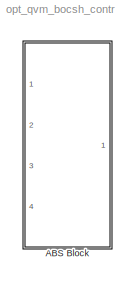
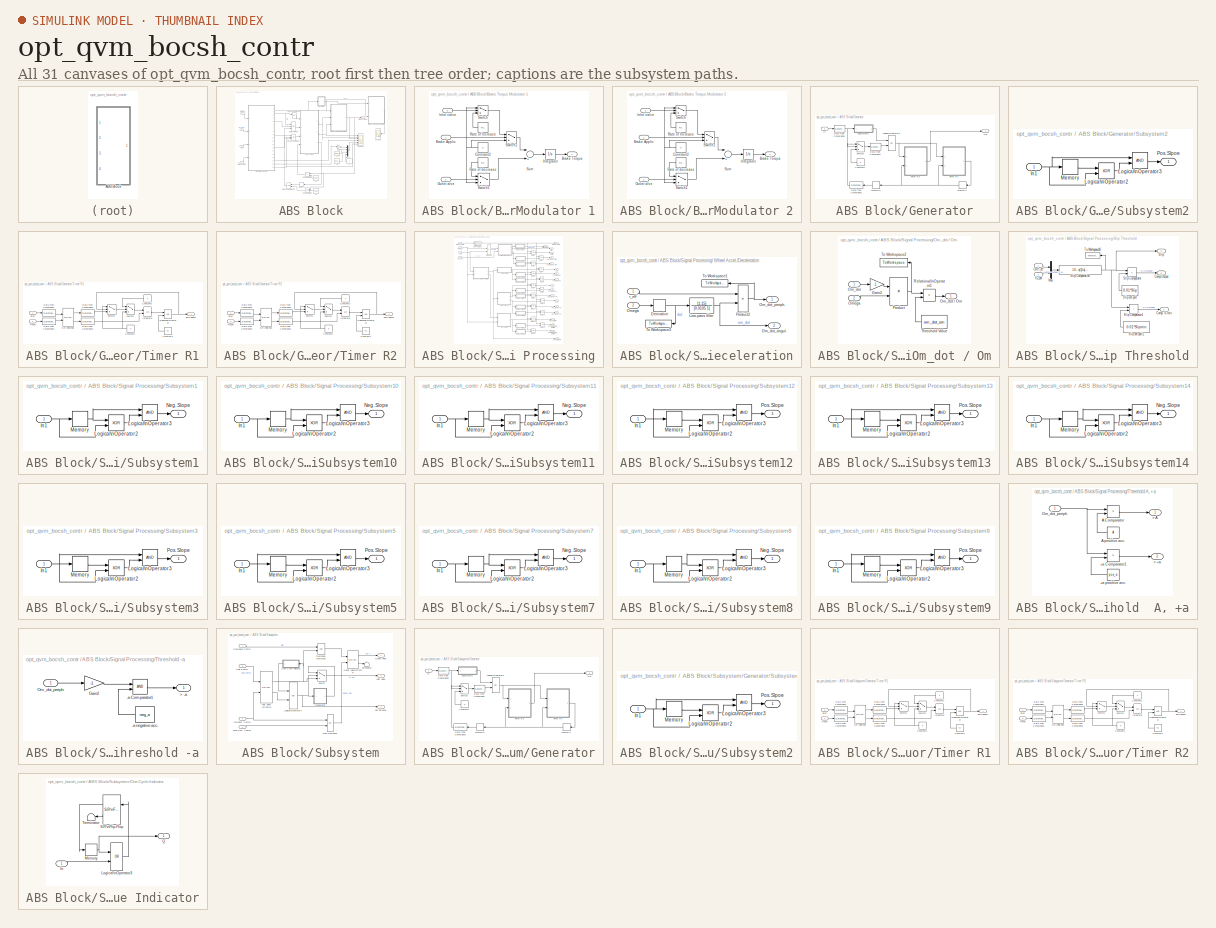
[diagram: thumbnail index - all 31 canvases of the model, root first then tree order]
MODEL opt_qvm_bocsh_contr
KIND model
CONFIG AbsTol = auto
CONFIG FixedStep = auto
CONFIG MaxStep = auto
CONFIG MinStep = auto
CONFIG RelTol = 1e-3
CONFIG Solver = ode45
CONFIG SolverMode = Auto
CONFIG StartTime = 0.0
CONFIG StopTime = 10.0
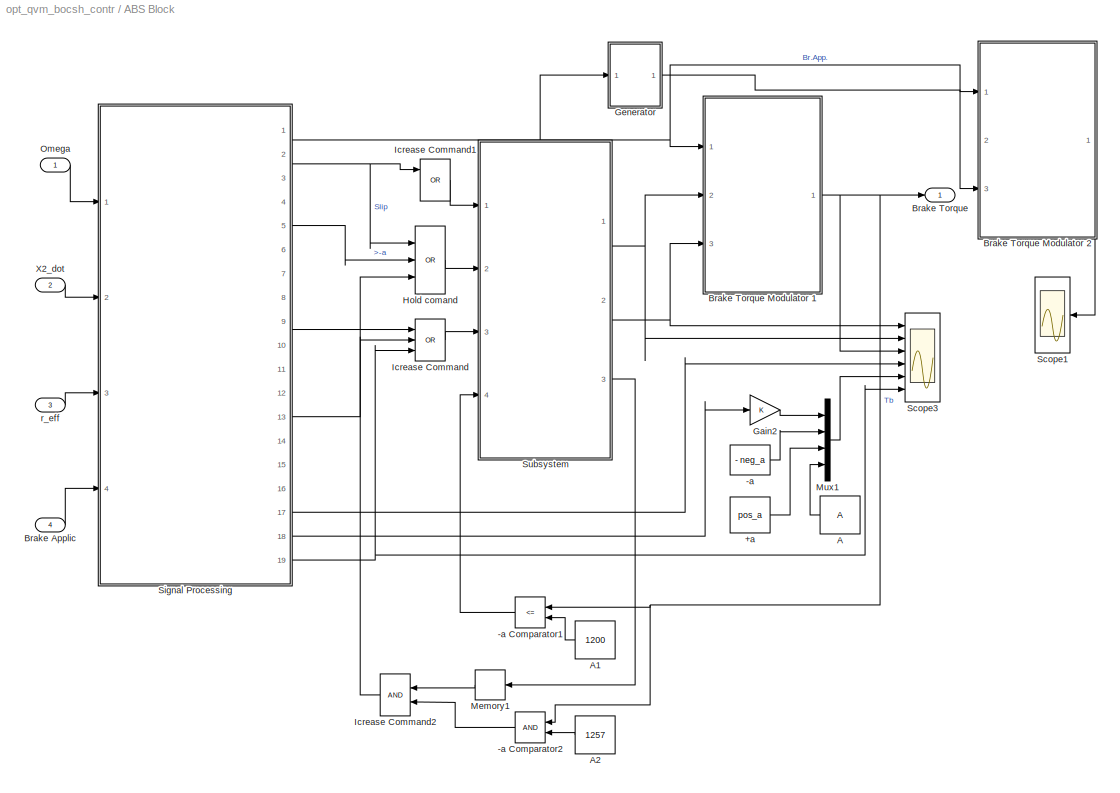
BLOCK [SubSystem] ABS Block
  MaskCallbackString = ||||||||||
  MaskEnableString = on,on,on,on,on,on,on,on,on,on,on
  MaskIconFrame = on
  MaskIconOpaque = on
  MaskIconRotate = none
  MaskIconUnits = autoscale
  MaskPromptString = R1 - Rate of incerase of the  Breake Torque. [Nm/s]|R2 - Rate of decerase of the  Breake Torque. [Nm/s]|Bmax - Max. Value of the Brake Torque. [Nm]|TO - Inlet Valve open time [s]|TC - Inlet Valve close time [s]|Desired slip [%]  |Slipmin - Minimum slip level|-a - Threshold value of the wheel peripheral deceleration [m/s^2]|+a - Threshold value of the wheel peripheral acceleration [m/s^2]|A - Thres...<+114ch>
  MaskStyleString = edit,edit,edit,edit,edit,edit,edit,edit,edit,edit,edit
  MaskToolTipString = on,on,on,on,on,on,on,on,on,on,on
  MaskTunableValueString = on,on,on,on,on,on,on,on,on,on,on
  MaskValueString = 19000|19000|1300|0.006|0.050|18|17|60|3|10|3
  MaskVarAliasString = ,,,,,,,,,,
  MaskVariables = R1=@1;R2=@2;Bmax=@3;TO=@4;TC=@5;Slip=@6;Slipmin=@7;neg_a=@8;pos_a=@9;A=@10;om_dot_om=@11;
  MaskVisibilityString = on,on,on,on,on,on,on,on,on,on,on
  Ports = [4, 1]
  TreatAsAtomicUnit = off
BLOCK [Constant] ABS Block/+a
  Value = pos_a
BLOCK [Constant] ABS Block/-a
  Value = - neg_a
BLOCK [RelationalOperator] ABS Block/-a Comparator1
  Operator = <=
BLOCK [RelationalOperator] ABS Block/-a Comparator2
BLOCK [Constant] ABS Block/A
  Value = A
BLOCK [Constant] ABS Block/A1
  Value = 1200
BLOCK [Constant] ABS Block/A2
  Value = 1257
BLOCK [Inport] ABS Block/Brake Applic
  Port = 4
BLOCK [Outport] ABS Block/Brake Torque
BLOCK [SubSystem] ABS Block/Brake Torque Modulator 1
  Description = The sysytem holds the Brake Torque at the reached value if no control signal applied
  MaskCallbackString = ||
  MaskEnableString = on,on,on
  MaskIconFrame = on
  MaskIconOpaque = on
  MaskIconRotate = none
  MaskIconUnits = autoscale
  MaskPromptString = Bmax - Max. Value of the Brake Torque. [Nm]|R1 - Rate of incerase of the  Brake Torque. [Nm/s]|R2 - Rate of decerase of the  Brake Torque. [Nm/s]
  MaskStyleString = edit,edit,edit
  MaskToolTipString = on,on,on
  MaskTunableValueString = on,on,on
  MaskValueString = Bmax|R1|R2
  MaskVarAliasString = ,,
  MaskVariables = Bmax=@1;R1=@2;R2=@3;
  MaskVisibilityString = on,on,on
  Ports = [3, 1]
  TreatAsAtomicUnit = off
BLOCK [Inport] ABS Block/Brake Torque Modulator 1/Brake Applic
BLOCK [Outport] ABS Block/Brake Torque Modulator 1/Brake Torque
BLOCK [Constant] ABS Block/Brake Torque Modulator 1/Constant2
  Value = 0
BLOCK [Inport] ABS Block/Brake Torque Modulator 1/Inlet valve
  Port = 3
BLOCK [Integrator] ABS Block/Brake Torque Modulator 1/Integrator
  LimitOutput = on
  LowerSaturationLimit = 0
  Ports = [1, 1]
  UpperSaturationLimit = Bmax
BLOCK [Inport] ABS Block/Brake Torque Modulator 1/Outlet alve
  Port = 2
BLOCK [Constant] ABS Block/Brake Torque Modulator 1/Rate of Increase
  Value = R1
BLOCK [Constant] ABS Block/Brake Torque Modulator 1/Rate of decrease
  Value = R2
BLOCK [Sum] ABS Block/Brake Torque Modulator 1/Sum
  Inputs = |+-
  Ports = [2, 1]
BLOCK [Switch] ABS Block/Brake Torque Modulator 1/Switch
  Threshold = 1
BLOCK [Switch] ABS Block/Brake Torque Modulator 1/Switch1
  Threshold = 1
BLOCK [Switch] ABS Block/Brake Torque Modulator 1/Switch2
  Threshold = 1
BLOCK [SubSystem] ABS Block/Brake Torque Modulator 2
  Description = The sysytem holds the Brake Torque at the reached value if no control signal applied
  MaskCallbackString = ||
  MaskEnableString = on,on,on
  MaskIconFrame = on
  MaskIconOpaque = on
  MaskIconRotate = none
  MaskIconUnits = autoscale
  MaskPromptString = Bmax - Max. Value of the Brake Torque. [Nm]|R1 - Rate of incerase of the  Brake Torque. [Nm/s]|R2 - Rate of decerase of the  Brake Torque. [Nm/s]
  MaskStyleString = edit,edit,edit
  MaskToolTipString = on,on,on
  MaskTunableValueString = on,on,on
  MaskValueString = Bmax|R1|R2
  MaskVarAliasString = ,,
  MaskVariables = Bmax=@1;R1=@2;R2=@3;
  MaskVisibilityString = on,on,on
  Ports = [3, 1]
  TreatAsAtomicUnit = off
BLOCK [Inport] ABS Block/Brake Torque Modulator 2/Brake Applic
BLOCK [Outport] ABS Block/Brake Torque Modulator 2/Brake Torque
BLOCK [Constant] ABS Block/Brake Torque Modulator 2/Constant2
  Value = 0
BLOCK [Inport] ABS Block/Brake Torque Modulator 2/Inlet valve
  Port = 3
BLOCK [Integrator] ABS Block/Brake Torque Modulator 2/Integrator
  LimitOutput = on
  LowerSaturationLimit = 0
  Ports = [1, 1]
  UpperSaturationLimit = Bmax
BLOCK [Inport] ABS Block/Brake Torque Modulator 2/Outlet alve
  Port = 2
BLOCK [Constant] ABS Block/Brake Torque Modulator 2/Rate of Increase
  Value = R1
BLOCK [Constant] ABS Block/Brake Torque Modulator 2/Rate of decrease
  Value = R2
BLOCK [Sum] ABS Block/Brake Torque Modulator 2/Sum
  Inputs = |+-
  Ports = [2, 1]
BLOCK [Switch] ABS Block/Brake Torque Modulator 2/Switch
  Threshold = 1
BLOCK [Switch] ABS Block/Brake Torque Modulator 2/Switch1
  Threshold = 1
BLOCK [Switch] ABS Block/Brake Torque Modulator 2/Switch2
  Threshold = 1
BLOCK [Gain] ABS Block/Gain2
BLOCK [SubSystem] ABS Block/Generator
  MaskCallbackString = |
  MaskEnableString = on,on
  MaskIconFrame = on
  MaskIconOpaque = on
  MaskIconRotate = none
  MaskIconUnits = autoscale
  MaskPromptString = Valve open [s]|Valve closed [s]
  MaskStyleString = edit,edit
  MaskToolTipString = on,on
  MaskTunableValueString = on,on
  MaskValueString = TO|TC
  MaskVarAliasString = ,
  MaskVariables = TO=@1;TC=@2;
  MaskVisibilityString = on,on
  Ports = [1, 1]
  TreatAsAtomicUnit = off
BLOCK [Constant] ABS Block/Generator/Constant1
  Value = 0
BLOCK [DataTypeConversion] ABS Block/Generator/Data Type Conversion1
  DataType = boolean
BLOCK [DataTypeConversion] ABS Block/Generator/Data Type Conversion2
  DataType = double
BLOCK [DataTypeConversion] ABS Block/Generator/Data Type Conversion5
  DataType = boolean
BLOCK [Inport] ABS Block/Generator/In
BLOCK [Logic] ABS Block/Generator/Logical\nOperator2
  Operator = OR
  Ports = [2, 1]
BLOCK [Memory] ABS Block/Generator/Memory1
BLOCK [Memory] ABS Block/Generator/Memory2
BLOCK [Outport] ABS Block/Generator/Out
BLOCK [SubSystem] ABS Block/Generator/Subsystem2
  Ports = [1, 1]
  TreatAsAtomicUnit = off
BLOCK [Inport] ABS Block/Generator/Subsystem2/In1
BLOCK [Logic] ABS Block/Generator/Subsystem2/Logical\nOperator2
  Operator = XOR
  Ports = [2, 1]
BLOCK [Logic] ABS Block/Generator/Subsystem2/Logical\nOperator3
  Ports = [2, 1]
BLOCK [Memory] ABS Block/Generator/Subsystem2/Memory
BLOCK [Outport] ABS Block/Generator/Subsystem2/Pos. Slpoe
BLOCK [Switch] ABS Block/Generator/Switch2
  Threshold = 1
BLOCK [SubSystem] ABS Block/Generator/Timer R1
  MaskEnableString = on
  MaskIconFrame = on
  MaskIconOpaque = on
  MaskIconRotate = none
  MaskIconUnits = autoscale
  MaskPromptString = Cycle Time [s]
  MaskStyleString = edit
  MaskToolTipString = on
  MaskTunableValueString = on
  MaskValueString = TC
  MaskVariables = TC=@1;
  MaskVisibilityString = on
  Ports = [2, 1]
  TreatAsAtomicUnit = off
BLOCK [Constant] ABS Block/Generator/Timer R1/Constant1
  Value = 0
BLOCK [Constant] ABS Block/Generator/Timer R1/Constant2
BLOCK [Constant] ABS Block/Generator/Timer R1/Constant3
  Value = TC
BLOCK [DataTypeConversion] ABS Block/Generator/Timer R1/Data Type Conversion1
  DataType = boolean
BLOCK [DataTypeConversion] ABS Block/Generator/Timer R1/Data Type Conversion2
  DataType = double
BLOCK [DataTypeConversion] ABS Block/Generator/Timer R1/Data Type Conversion3
  DataType = boolean
BLOCK [DataTypeConversion] ABS Block/Generator/Timer R1/Data Type Conversion5
  DataType = double
BLOCK [Integrator] ABS Block/Generator/Timer R1/Integrator
  ExternalReset = level
  Ports = [2, 1]
BLOCK [RelationalOperator] ABS Block/Generator/Timer R1/Relational\nOperator
BLOCK [Inport] ABS Block/Generator/Timer R1/Reset
  Port = 2
BLOCK [Reference] ABS Block/Generator/Timer R1/S-R\nFlip-Flop  REF=simulink_extras/Flip Flops/S-R\nFlip-Flop
  Ports = [2, 2]
  SourceBlock = simulink_extras/Flip Flops/S-R\nFlip-Flop
  SourceType = SRFlipFlop
  initial_condition = 0
BLOCK [Inport] ABS Block/Generator/Timer R1/Start
BLOCK [Switch] ABS Block/Generator/Timer R1/Switch1
  Threshold = 1
BLOCK [Switch] ABS Block/Generator/Timer R1/Switch2
  Threshold = 1
BLOCK [Outport] ABS Block/Generator/Timer R1/Time elapse
BLOCK [SubSystem] ABS Block/Generator/Timer R2
  MaskEnableString = on
  MaskIconFrame = on
  MaskIconOpaque = on
  MaskIconRotate = none
  MaskIconUnits = autoscale
  MaskPromptString = Open time [s]
  MaskStyleString = edit
  MaskToolTipString = on
  MaskTunableValueString = on
  MaskValueString = TO
  MaskVariables = TO=@1;
  MaskVisibilityString = on
  Ports = [2, 1]
  TreatAsAtomicUnit = off
BLOCK [Constant] ABS Block/Generator/Timer R2/Constant1
  Value = 0
BLOCK [Constant] ABS Block/Generator/Timer R2/Constant2
BLOCK [Constant] ABS Block/Generator/Timer R2/Constant3
  Value = TO
BLOCK [DataTypeConversion] ABS Block/Generator/Timer R2/Data Type Conversion1
  DataType = boolean
BLOCK [DataTypeConversion] ABS Block/Generator/Timer R2/Data Type Conversion2
  DataType = double
BLOCK [DataTypeConversion] ABS Block/Generator/Timer R2/Data Type Conversion3
  DataType = boolean
BLOCK [DataTypeConversion] ABS Block/Generator/Timer R2/Data Type Conversion5
  DataType = double
BLOCK [Integrator] ABS Block/Generator/Timer R2/Integrator
  ExternalReset = level
  Ports = [2, 1]
BLOCK [RelationalOperator] ABS Block/Generator/Timer R2/Relational\nOperator
BLOCK [Inport] ABS Block/Generator/Timer R2/Reset
  Port = 2
BLOCK [Reference] ABS Block/Generator/Timer R2/S-R\nFlip-Flop  REF=simulink_extras/Flip Flops/S-R\nFlip-Flop
  Ports = [2, 2]
  SourceBlock = simulink_extras/Flip Flops/S-R\nFlip-Flop
  SourceType = SRFlipFlop
  initial_condition = 0
BLOCK [Inport] ABS Block/Generator/Timer R2/Start
BLOCK [Switch] ABS Block/Generator/Timer R2/Switch1
  Threshold = 1
BLOCK [Switch] ABS Block/Generator/Timer R2/Switch2
  Threshold = 1
BLOCK [Outport] ABS Block/Generator/Timer R2/Time elapse
BLOCK [Logic] ABS Block/Hold comand
  Inputs = 3
  Operator = OR
  Ports = [3, 1]
BLOCK [Logic] ABS Block/Icrease Command
  Inputs = 3
  Operator = OR
  Ports = [3, 1]
BLOCK [Logic] ABS Block/Icrease Command1
  Inputs = 3
  Operator = OR
  Ports = [3, 1]
BLOCK [Logic] ABS Block/Icrease Command2
  Ports = [2, 1]
BLOCK [Memory] ABS Block/Memory1
BLOCK [Mux] ABS Block/Mux1
  DisplayOption = bar
  Ports = [4, 1]
BLOCK [Inport] ABS Block/Omega
BLOCK [Scope] ABS Block/Scope1
  DataFormat = StructureWithTime
  LimitDataPoints = off
  NumInputPorts = 1
  Ports = [1]
  SaveName = ScopeData5
  TimeRange = 3
  YMax = 1
  YMin = -1
  ZoomMode = yonly
BLOCK [Scope] ABS Block/Scope3
  DataFormat = StructureWithTime
  LimitDataPoints = off
  NumInputPorts = 6
  Ports = [6]
  TimeRange = 3
  YMax = 1~1~1500~0.225~30~5
  YMin = 0~0~0~-0.025~-90~-5
  ZoomMode = yonly
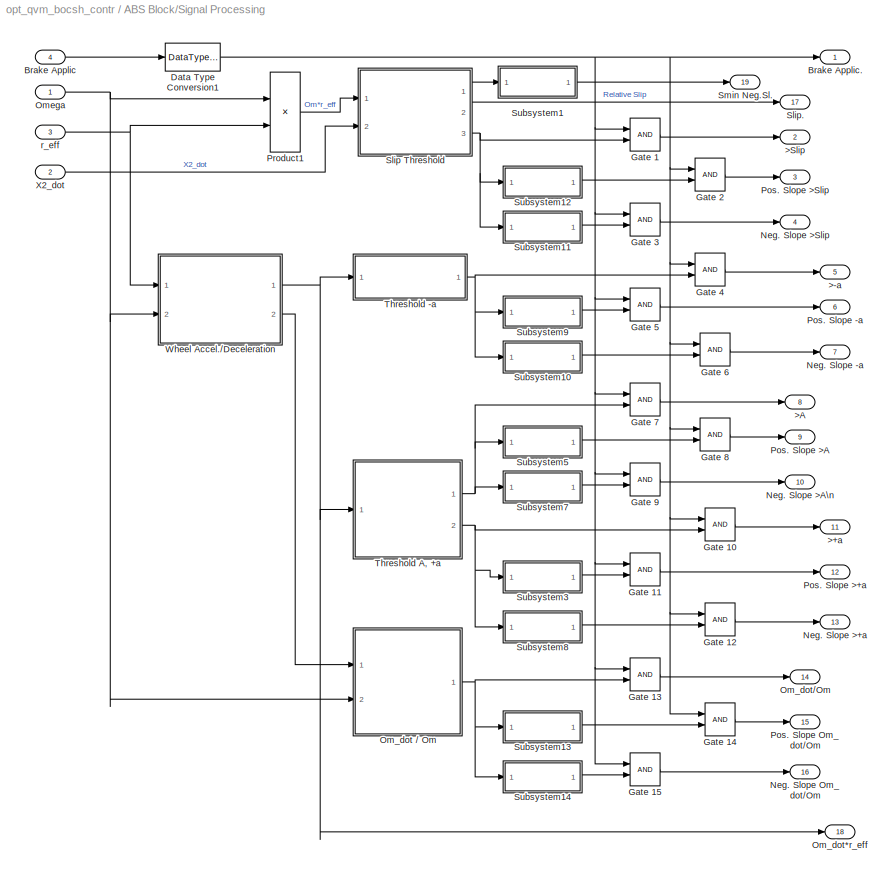
BLOCK [SubSystem] ABS Block/Signal Processing
  Ports = [4, 19]
  TreatAsAtomicUnit = off
BLOCK [Outport] ABS Block/Signal Processing/ Om_dot*r_eff
  Port = 18
BLOCK [SubSystem] ABS Block/Signal Processing/ Wheel Accel.//Deceleration
  Ports = [2, 2]
  TreatAsAtomicUnit = off
BLOCK [Derivative] ABS Block/Signal Processing/ Wheel Accel.//Deceleration/Derivative
BLOCK [TransferFcn] ABS Block/Signal Processing/ Wheel Accel.//Deceleration/Low-pass filter
  Denominator = [0.0105 1]
  Numerator = [1.15]
BLOCK [Outport] ABS Block/Signal Processing/ Wheel Accel.//Deceleration/Om_dot_angul.
  Port = 2
BLOCK [Outport] ABS Block/Signal Processing/ Wheel Accel.//Deceleration/Om_dot_periph.
BLOCK [Inport] ABS Block/Signal Processing/ Wheel Accel.//Deceleration/Omega
  Port = 2
BLOCK [Product] ABS Block/Signal Processing/ Wheel Accel.//Deceleration/Product2
  Inputs = **
  Ports = [2, 1]
BLOCK [ToWorkspace] ABS Block/Signal Processing/ Wheel Accel.//Deceleration/To Workspace1
  MaxDataPoints = 10000
  SaveFormat = Array
  VariableName = om_dot_per
BLOCK [ToWorkspace] ABS Block/Signal Processing/ Wheel Accel.//Deceleration/To Workspace3
  MaxDataPoints = 10000
  SaveFormat = Array
  VariableName = om_dotcont
BLOCK [Inport] ABS Block/Signal Processing/ Wheel Accel.//Deceleration/r_eff
BLOCK [Outport] ABS Block/Signal Processing/>+a
  Port = 11
BLOCK [Outport] ABS Block/Signal Processing/>-a
  Port = 5
BLOCK [Outport] ABS Block/Signal Processing/>A
  Port = 8
BLOCK [Outport] ABS Block/Signal Processing/>Slip
  Port = 2
BLOCK [Inport] ABS Block/Signal Processing/Brake Applic
  Port = 4
BLOCK [Outport] ABS Block/Signal Processing/Brake Applic.
BLOCK [DataTypeConversion] ABS Block/Signal Processing/Data Type Conversion1
  DataType = boolean
BLOCK [Logic] ABS Block/Signal Processing/Gate 1
  Ports = [2, 1]
BLOCK [Logic] ABS Block/Signal Processing/Gate 10
  Ports = [2, 1]
BLOCK [Logic] ABS Block/Signal Processing/Gate 11
  Ports = [2, 1]
BLOCK [Logic] ABS Block/Signal Processing/Gate 12
  Ports = [2, 1]
BLOCK [Logic] ABS Block/Signal Processing/Gate 13
  Ports = [2, 1]
BLOCK [Logic] ABS Block/Signal Processing/Gate 14
  Ports = [2, 1]
BLOCK [Logic] ABS Block/Signal Processing/Gate 15
  Ports = [2, 1]
BLOCK [Logic] ABS Block/Signal Processing/Gate 2
  Ports = [2, 1]
BLOCK [Logic] ABS Block/Signal Processing/Gate 3
  Ports = [2, 1]
BLOCK [Logic] ABS Block/Signal Processing/Gate 4
  Ports = [2, 1]
BLOCK [Logic] ABS Block/Signal Processing/Gate 5
  Ports = [2, 1]
BLOCK [Logic] ABS Block/Signal Processing/Gate 6
  Ports = [2, 1]
BLOCK [Logic] ABS Block/Signal Processing/Gate 7
  Ports = [2, 1]
BLOCK [Logic] ABS Block/Signal Processing/Gate 8
  Ports = [2, 1]
BLOCK [Logic] ABS Block/Signal Processing/Gate 9
  Ports = [2, 1]
BLOCK [Outport] ABS Block/Signal Processing/Neg. Slope -a
  Port = 7
BLOCK [Outport] ABS Block/Signal Processing/Neg. Slope >+a
  Port = 13
BLOCK [Outport] ABS Block/Signal Processing/Neg. Slope >A\n
  Port = 10
BLOCK [Outport] ABS Block/Signal Processing/Neg. Slope >Slip
  Port = 4
BLOCK [Outport] ABS Block/Signal Processing/Neg. Slope Om_dot//Om
  Port = 16
BLOCK [SubSystem] ABS Block/Signal Processing/Om_dot // Om
  Ports = [2, 1]
  TreatAsAtomicUnit = off
BLOCK [Gain] ABS Block/Signal Processing/Om_dot // Om/Gain2
  Gain = -1
BLOCK [Inport] ABS Block/Signal Processing/Om_dot // Om/Om_dot
BLOCK [Outport] ABS Block/Signal Processing/Om_dot // Om/Om_dot // Om
BLOCK [Inport] ABS Block/Signal Processing/Om_dot // Om/Omega
  Port = 2
BLOCK [Product] ABS Block/Signal Processing/Om_dot // Om/Product
  Inputs = */
  Ports = [2, 1]
BLOCK [RelationalOperator] ABS Block/Signal Processing/Om_dot // Om/Relational\nOperator1
  Operator = >
BLOCK [Constant] ABS Block/Signal Processing/Om_dot // Om/Threshold Value
  Value = om_dot_om
BLOCK [ToWorkspace] ABS Block/Signal Processing/Om_dot // Om/To Workspace2
  MaxDataPoints = 10000
  SaveFormat = Array
  VariableName = om_dotf_om
BLOCK [Outport] ABS Block/Signal Processing/Om_dot//Om
  Port = 14
BLOCK [Inport] ABS Block/Signal Processing/Omega
BLOCK [Outport] ABS Block/Signal Processing/Pos. Slope -a
  Port = 6
BLOCK [Outport] ABS Block/Signal Processing/Pos. Slope >+a
  Port = 12
BLOCK [Outport] ABS Block/Signal Processing/Pos. Slope >A
  Port = 9
BLOCK [Outport] ABS Block/Signal Processing/Pos. Slope >Slip
  Port = 3
BLOCK [Outport] ABS Block/Signal Processing/Pos. Slope Om_dot//Om
  Port = 15
BLOCK [Product] ABS Block/Signal Processing/Product1
  Inputs = **
  Ports = [2, 1]
BLOCK [SubSystem] ABS Block/Signal Processing/Slip Threshold
  Ports = [2, 3]
  TreatAsAtomicUnit = off
BLOCK [Fcn] ABS Block/Signal Processing/Slip Threshold/ Slip Computation
  Expr = 1.0 - u(1)/u(2)
BLOCK [Outport] ABS Block/Signal Processing/Slip Threshold/Comp. S-min
BLOCK [Outport] ABS Block/Signal Processing/Slip Threshold/Comp.Output
  Port = 3
BLOCK [Mux] ABS Block/Signal Processing/Slip Threshold/Mux
  DisplayOption = bar
  Inputs = 2
  Ports = [2, 1]
BLOCK [Inport] ABS Block/Signal Processing/Slip Threshold/Om*r_eff
BLOCK [Outport] ABS Block/Signal Processing/Slip Threshold/Slip
  Port = 2
BLOCK [RelationalOperator] ABS Block/Signal Processing/Slip Threshold/Slip Comparator
  Operator = >
BLOCK [RelationalOperator] ABS Block/Signal Processing/Slip Threshold/Slip Comparator1
  Operator = >
BLOCK [Constant] ABS Block/Signal Processing/Slip Threshold/Slip set-poit
  Value = 0.01*Slip
BLOCK [Constant] ABS Block/Signal Processing/Slip Threshold/Slip set-poit1
  Value = 0.01*Slipmin
BLOCK [ToWorkspace] ABS Block/Signal Processing/Slip Threshold/To Workspace18
  MaxDataPoints = 10000
  SaveFormat = Array
  VariableName = slip_est
BLOCK [Inport] ABS Block/Signal Processing/Slip Threshold/X2_dot
  Port = 2
BLOCK [Outport] ABS Block/Signal Processing/Slip.
  Port = 17
BLOCK [Outport] ABS Block/Signal Processing/Smin Neg.Sl.
  Port = 19
BLOCK [SubSystem] ABS Block/Signal Processing/Subsystem1
  Ports = [1, 1]
  TreatAsAtomicUnit = off
BLOCK [Inport] ABS Block/Signal Processing/Subsystem1/In1
BLOCK [Logic] ABS Block/Signal Processing/Subsystem1/Logical\nOperator2
  Operator = XOR
  Ports = [2, 1]
BLOCK [Logic] ABS Block/Signal Processing/Subsystem1/Logical\nOperator3
  Ports = [2, 1]
BLOCK [Memory] ABS Block/Signal Processing/Subsystem1/Memory
BLOCK [Outport] ABS Block/Signal Processing/Subsystem1/Neg. Slope
BLOCK [SubSystem] ABS Block/Signal Processing/Subsystem10
  Ports = [1, 1]
  TreatAsAtomicUnit = off
BLOCK [Inport] ABS Block/Signal Processing/Subsystem10/In1
BLOCK [Logic] ABS Block/Signal Processing/Subsystem10/Logical\nOperator2
  Operator = XOR
  Ports = [2, 1]
BLOCK [Logic] ABS Block/Signal Processing/Subsystem10/Logical\nOperator3
  Ports = [2, 1]
BLOCK [Memory] ABS Block/Signal Processing/Subsystem10/Memory
BLOCK [Outport] ABS Block/Signal Processing/Subsystem10/Neg. Slope
BLOCK [SubSystem] ABS Block/Signal Processing/Subsystem11
  Ports = [1, 1]
  TreatAsAtomicUnit = off
BLOCK [Inport] ABS Block/Signal Processing/Subsystem11/In1
BLOCK [Logic] ABS Block/Signal Processing/Subsystem11/Logical\nOperator2
  Operator = XOR
  Ports = [2, 1]
BLOCK [Logic] ABS Block/Signal Processing/Subsystem11/Logical\nOperator3
  Ports = [2, 1]
BLOCK [Memory] ABS Block/Signal Processing/Subsystem11/Memory
BLOCK [Outport] ABS Block/Signal Processing/Subsystem11/Neg. Slope
BLOCK [SubSystem] ABS Block/Signal Processing/Subsystem12
  Ports = [1, 1]
  TreatAsAtomicUnit = off
BLOCK [Inport] ABS Block/Signal Processing/Subsystem12/In1
BLOCK [Logic] ABS Block/Signal Processing/Subsystem12/Logical\nOperator2
  Operator = XOR
  Ports = [2, 1]
BLOCK [Logic] ABS Block/Signal Processing/Subsystem12/Logical\nOperator3
  Ports = [2, 1]
BLOCK [Memory] ABS Block/Signal Processing/Subsystem12/Memory
BLOCK [Outport] ABS Block/Signal Processing/Subsystem12/Pos. Slope
BLOCK [SubSystem] ABS Block/Signal Processing/Subsystem13
  Ports = [1, 1]
  TreatAsAtomicUnit = off
BLOCK [Inport] ABS Block/Signal Processing/Subsystem13/In1
BLOCK [Logic] ABS Block/Signal Processing/Subsystem13/Logical\nOperator2
  Operator = XOR
  Ports = [2, 1]
BLOCK [Logic] ABS Block/Signal Processing/Subsystem13/Logical\nOperator3
  Ports = [2, 1]
BLOCK [Memory] ABS Block/Signal Processing/Subsystem13/Memory
BLOCK [Outport] ABS Block/Signal Processing/Subsystem13/Pos. Slope
BLOCK [SubSystem] ABS Block/Signal Processing/Subsystem14
  Ports = [1, 1]
  TreatAsAtomicUnit = off
BLOCK [Inport] ABS Block/Signal Processing/Subsystem14/In1
BLOCK [Logic] ABS Block/Signal Processing/Subsystem14/Logical\nOperator2
  Operator = XOR
  Ports = [2, 1]
BLOCK [Logic] ABS Block/Signal Processing/Subsystem14/Logical\nOperator3
  Ports = [2, 1]
BLOCK [Memory] ABS Block/Signal Processing/Subsystem14/Memory
BLOCK [Outport] ABS Block/Signal Processing/Subsystem14/Neg. Slope
BLOCK [SubSystem] ABS Block/Signal Processing/Subsystem3
  Ports = [1, 1]
  TreatAsAtomicUnit = off
BLOCK [Inport] ABS Block/Signal Processing/Subsystem3/In1
BLOCK [Logic] ABS Block/Signal Processing/Subsystem3/Logical\nOperator2
  Operator = XOR
  Ports = [2, 1]
BLOCK [Logic] ABS Block/Signal Processing/Subsystem3/Logical\nOperator3
  Ports = [2, 1]
BLOCK [Memory] ABS Block/Signal Processing/Subsystem3/Memory
BLOCK [Outport] ABS Block/Signal Processing/Subsystem3/Pos. Slope
BLOCK [SubSystem] ABS Block/Signal Processing/Subsystem5
  Ports = [1, 1]
  TreatAsAtomicUnit = off
BLOCK [Inport] ABS Block/Signal Processing/Subsystem5/In1
BLOCK [Logic] ABS Block/Signal Processing/Subsystem5/Logical\nOperator2
  Operator = XOR
  Ports = [2, 1]
BLOCK [Logic] ABS Block/Signal Processing/Subsystem5/Logical\nOperator3
  Ports = [2, 1]
BLOCK [Memory] ABS Block/Signal Processing/Subsystem5/Memory
BLOCK [Outport] ABS Block/Signal Processing/Subsystem5/Pos. Slope
BLOCK [SubSystem] ABS Block/Signal Processing/Subsystem7
  Ports = [1, 1]
  TreatAsAtomicUnit = off
BLOCK [Inport] ABS Block/Signal Processing/Subsystem7/In1
BLOCK [Logic] ABS Block/Signal Processing/Subsystem7/Logical\nOperator2
  Operator = XOR
  Ports = [2, 1]
BLOCK [Logic] ABS Block/Signal Processing/Subsystem7/Logical\nOperator3
  Ports = [2, 1]
BLOCK [Memory] ABS Block/Signal Processing/Subsystem7/Memory
BLOCK [Outport] ABS Block/Signal Processing/Subsystem7/Neg. Slope
BLOCK [SubSystem] ABS Block/Signal Processing/Subsystem8
  Ports = [1, 1]
  TreatAsAtomicUnit = off
BLOCK [Inport] ABS Block/Signal Processing/Subsystem8/In1
BLOCK [Logic] ABS Block/Signal Processing/Subsystem8/Logical\nOperator2
  Operator = XOR
  Ports = [2, 1]
BLOCK [Logic] ABS Block/Signal Processing/Subsystem8/Logical\nOperator3
  Ports = [2, 1]
BLOCK [Memory] ABS Block/Signal Processing/Subsystem8/Memory
BLOCK [Outport] ABS Block/Signal Processing/Subsystem8/Neg. Slope
BLOCK [SubSystem] ABS Block/Signal Processing/Subsystem9
  Ports = [1, 1]
  TreatAsAtomicUnit = off
BLOCK [Inport] ABS Block/Signal Processing/Subsystem9/In1
BLOCK [Logic] ABS Block/Signal Processing/Subsystem9/Logical\nOperator2
  Operator = XOR
  Ports = [2, 1]
BLOCK [Logic] ABS Block/Signal Processing/Subsystem9/Logical\nOperator3
  Ports = [2, 1]
BLOCK [Memory] ABS Block/Signal Processing/Subsystem9/Memory
BLOCK [Outport] ABS Block/Signal Processing/Subsystem9/Pos. Slope
BLOCK [SubSystem] ABS Block/Signal Processing/Threshold  A, +a
  Ports = [1, 2]
  TreatAsAtomicUnit = off
BLOCK [Outport] ABS Block/Signal Processing/Threshold  A, +a/ > A
BLOCK [RelationalOperator] ABS Block/Signal Processing/Threshold  A, +a/+a Comparator1
  Operator = >
BLOCK [Constant] ABS Block/Signal Processing/Threshold  A, +a/+a positive acc.
  Value = pos_a
BLOCK [Outport] ABS Block/Signal Processing/Threshold  A, +a/> +a
  Port = 2
BLOCK [RelationalOperator] ABS Block/Signal Processing/Threshold  A, +a/A Comparator
  Operator = >
BLOCK [Constant] ABS Block/Signal Processing/Threshold  A, +a/A positive acc.
  Value = A
BLOCK [Inport] ABS Block/Signal Processing/Threshold  A, +a/Om_dot_periph.
BLOCK [SubSystem] ABS Block/Signal Processing/Threshold -a
  Ports = [1, 1]
  TreatAsAtomicUnit = off
BLOCK [RelationalOperator] ABS Block/Signal Processing/Threshold -a/-a Comparator1
BLOCK [Constant] ABS Block/Signal Processing/Threshold -a/-a negative acc.
  Value = neg_a
BLOCK [Outport] ABS Block/Signal Processing/Threshold -a/> -a
BLOCK [Gain] ABS Block/Signal Processing/Threshold -a/Gain2
  Gain = -1
BLOCK [Inport] ABS Block/Signal Processing/Threshold -a/Om_dot_periph.
BLOCK [Inport] ABS Block/Signal Processing/X2_dot
  Port = 2
BLOCK [Inport] ABS Block/Signal Processing/r_eff
  Port = 3
BLOCK [SubSystem] ABS Block/Subsystem
  Ports = [4, 3]
  TreatAsAtomicUnit = off
BLOCK [Inport] ABS Block/Subsystem/Decrease Comm.
BLOCK [Logic] ABS Block/Subsystem/Decrease command
  Ports = [2, 1]
BLOCK [SubSystem] ABS Block/Subsystem/Generator
  MaskCallbackString = |
  MaskEnableString = on,on
  MaskIconFrame = on
  MaskIconOpaque = on
  MaskIconRotate = none
  MaskIconUnits = autoscale
  MaskPromptString = Valve open [s]|Valve closed [s]
  MaskStyleString = edit,edit
  MaskToolTipString = on,on
  MaskTunableValueString = on,on
  MaskValueString = TO|TC
  MaskVarAliasString = ,
  MaskVariables = TO=@1;TC=@2;
  MaskVisibilityString = on,on
  Ports = [1, 1]
  TreatAsAtomicUnit = off
BLOCK [Constant] ABS Block/Subsystem/Generator/Constant1
  Value = 0
BLOCK [DataTypeConversion] ABS Block/Subsystem/Generator/Data Type Conversion1
  DataType = boolean
BLOCK [DataTypeConversion] ABS Block/Subsystem/Generator/Data Type Conversion2
  DataType = double
BLOCK [DataTypeConversion] ABS Block/Subsystem/Generator/Data Type Conversion5
  DataType = boolean
BLOCK [Inport] ABS Block/Subsystem/Generator/In
BLOCK [Logic] ABS Block/Subsystem/Generator/Logical\nOperator2
  Operator = OR
  Ports = [2, 1]
BLOCK [Memory] ABS Block/Subsystem/Generator/Memory1
BLOCK [Memory] ABS Block/Subsystem/Generator/Memory2
BLOCK [Outport] ABS Block/Subsystem/Generator/Out
BLOCK [SubSystem] ABS Block/Subsystem/Generator/Subsystem2
  Ports = [1, 1]
  TreatAsAtomicUnit = off
BLOCK [Inport] ABS Block/Subsystem/Generator/Subsystem2/In1
BLOCK [Logic] ABS Block/Subsystem/Generator/Subsystem2/Logical\nOperator2
  Operator = XOR
  Ports = [2, 1]
BLOCK [Logic] ABS Block/Subsystem/Generator/Subsystem2/Logical\nOperator3
  Ports = [2, 1]
BLOCK [Memory] ABS Block/Subsystem/Generator/Subsystem2/Memory
BLOCK [Outport] ABS Block/Subsystem/Generator/Subsystem2/Pos. Slpoe
BLOCK [Switch] ABS Block/Subsystem/Generator/Switch2
  Threshold = 1
BLOCK [SubSystem] ABS Block/Subsystem/Generator/Timer R1
  MaskEnableString = on
  MaskIconFrame = on
  MaskIconOpaque = on
  MaskIconRotate = none
  MaskIconUnits = autoscale
  MaskPromptString = Cycle Time [s]
  MaskStyleString = edit
  MaskToolTipString = on
  MaskTunableValueString = on
  MaskValueString = TC
  MaskVariables = TC=@1;
  MaskVisibilityString = on
  Ports = [2, 1]
  TreatAsAtomicUnit = off
BLOCK [Constant] ABS Block/Subsystem/Generator/Timer R1/Constant1
  Value = 0
BLOCK [Constant] ABS Block/Subsystem/Generator/Timer R1/Constant2
BLOCK [Constant] ABS Block/Subsystem/Generator/Timer R1/Constant3
  Value = TC
BLOCK [DataTypeConversion] ABS Block/Subsystem/Generator/Timer R1/Data Type Conversion1
  DataType = boolean
BLOCK [DataTypeConversion] ABS Block/Subsystem/Generator/Timer R1/Data Type Conversion2
  DataType = double
BLOCK [DataTypeConversion] ABS Block/Subsystem/Generator/Timer R1/Data Type Conversion3
  DataType = boolean
BLOCK [DataTypeConversion] ABS Block/Subsystem/Generator/Timer R1/Data Type Conversion5
  DataType = double
BLOCK [Integrator] ABS Block/Subsystem/Generator/Timer R1/Integrator
  ExternalReset = level
  Ports = [2, 1]
BLOCK [RelationalOperator] ABS Block/Subsystem/Generator/Timer R1/Relational\nOperator
BLOCK [Inport] ABS Block/Subsystem/Generator/Timer R1/Reset
  Port = 2
BLOCK [Reference] ABS Block/Subsystem/Generator/Timer R1/S-R\nFlip-Flop  REF=simulink_extras/Flip Flops/S-R\nFlip-Flop
  Ports = [2, 2]
  SourceBlock = simulink_extras/Flip Flops/S-R\nFlip-Flop
  SourceType = SRFlipFlop
  initial_condition = 0
BLOCK [Inport] ABS Block/Subsystem/Generator/Timer R1/Start
BLOCK [Switch] ABS Block/Subsystem/Generator/Timer R1/Switch1
  Threshold = 1
BLOCK [Switch] ABS Block/Subsystem/Generator/Timer R1/Switch2
  Threshold = 1
BLOCK [Outport] ABS Block/Subsystem/Generator/Timer R1/Time elapse
BLOCK [SubSystem] ABS Block/Subsystem/Generator/Timer R2
  MaskEnableString = on
  MaskIconFrame = on
  MaskIconOpaque = on
  MaskIconRotate = none
  MaskIconUnits = autoscale
  MaskPromptString = Open time [s]
  MaskStyleString = edit
  MaskToolTipString = on
  MaskTunableValueString = on
  MaskValueString = TO
  MaskVariables = TO=@1;
  MaskVisibilityString = on
  Ports = [2, 1]
  TreatAsAtomicUnit = off
BLOCK [Constant] ABS Block/Subsystem/Generator/Timer R2/Constant1
  Value = 0
BLOCK [Constant] ABS Block/Subsystem/Generator/Timer R2/Constant2
BLOCK [Constant] ABS Block/Subsystem/Generator/Timer R2/Constant3
  Value = TO
BLOCK [DataTypeConversion] ABS Block/Subsystem/Generator/Timer R2/Data Type Conversion1
  DataType = boolean
BLOCK [DataTypeConversion] ABS Block/Subsystem/Generator/Timer R2/Data Type Conversion2
  DataType = double
BLOCK [DataTypeConversion] ABS Block/Subsystem/Generator/Timer R2/Data Type Conversion3
  DataType = boolean
BLOCK [DataTypeConversion] ABS Block/Subsystem/Generator/Timer R2/Data Type Conversion5
  DataType = double
BLOCK [Integrator] ABS Block/Subsystem/Generator/Timer R2/Integrator
  ExternalReset = level
  Ports = [2, 1]
BLOCK [RelationalOperator] ABS Block/Subsystem/Generator/Timer R2/Relational\nOperator
BLOCK [Inport] ABS Block/Subsystem/Generator/Timer R2/Reset
  Port = 2
BLOCK [Reference] ABS Block/Subsystem/Generator/Timer R2/S-R\nFlip-Flop  REF=simulink_extras/Flip Flops/S-R\nFlip-Flop
  Ports = [2, 2]
  SourceBlock = simulink_extras/Flip Flops/S-R\nFlip-Flop
  SourceType = SRFlipFlop
  initial_condition = 0
BLOCK [Inport] ABS Block/Subsystem/Generator/Timer R2/Start
BLOCK [Switch] ABS Block/Subsystem/Generator/Timer R2/Switch1
  Threshold = 1
BLOCK [Switch] ABS Block/Subsystem/Generator/Timer R2/Switch2
  Threshold = 1
BLOCK [Outport] ABS Block/Subsystem/Generator/Timer R2/Time elapse
BLOCK [Inport] ABS Block/Subsystem/Hold Comm.
  Port = 2
BLOCK [Inport] ABS Block/Subsystem/Increase. Comm.
  Port = 3
BLOCK [Outport] ABS Block/Subsystem/Inlet Valve
  Port = 2
BLOCK [Reference] ABS Block/Subsystem/Inlet Valve \nControl  REF=simulink_extras/Flip Flops/S-R\nFlip-Flop
  Ports = [2, 2]
  SourceBlock = simulink_extras/Flip Flops/S-R\nFlip-Flop
  SourceType = SRFlipFlop
  initial_condition = 0
BLOCK [Logic] ABS Block/Subsystem/Logical\nOperator4
  Ports = [2, 1]
BLOCK [SubSystem] ABS Block/Subsystem/One Cycle Indicator
  Ports = [1, 1]
  TreatAsAtomicUnit = off
BLOCK [Inport] ABS Block/Subsystem/One Cycle Indicator/In
BLOCK [Logic] ABS Block/Subsystem/One Cycle Indicator/Logical\nOperator3
  Operator = OR
  Ports = [2, 1]
BLOCK [Memory] ABS Block/Subsystem/One Cycle Indicator/Memory
BLOCK [Outport] ABS Block/Subsystem/One Cycle Indicator/Q
BLOCK [Reference] ABS Block/Subsystem/One Cycle Indicator/S-R\nFlip-Flop  REF=simulink_extras/Flip Flops/S-R\nFlip-Flop
  Ports = [2, 2]
  SourceBlock = simulink_extras/Flip Flops/S-R\nFlip-Flop
  SourceType = SRFlipFlop
  initial_condition = 0
BLOCK [Terminator] ABS Block/Subsystem/One Cycle Indicator/Terminator
BLOCK [Outport] ABS Block/Subsystem/Outlet Valve
BLOCK [Reference] ABS Block/Subsystem/Outlet Valve\nControl  REF=simulink_extras/Flip Flops/S-R\nFlip-Flop
  Ports = [2, 2]
  SourceBlock = simulink_extras/Flip Flops/S-R\nFlip-Flop
  SourceType = SRFlipFlop
  initial_condition = 0
BLOCK [Outport] ABS Block/Subsystem/Sec increase
  Port = 3
BLOCK [Inport] ABS Block/Subsystem/Stop Dec. Comm.
  Port = 4
BLOCK [Logic] ABS Block/Subsystem/Stop Decrease
  Operator = OR
  Ports = [2, 1]
BLOCK [Switch] ABS Block/Subsystem/Switch
BLOCK [Terminator] ABS Block/Subsystem/Terminator
BLOCK [Inport] ABS Block/X2_dot
  Port = 2
BLOCK [Inport] ABS Block/r_eff
  Port = 3
LINE ABS Block/+a:1 -> ABS Block/Mux1:3
LINE ABS Block/-a Comparator1:1 -> ABS Block/Subsystem:4
LINE ABS Block/-a Comparator2:1 -> ABS Block/Icrease Command2:2
LINE ABS Block/-a:1 -> ABS Block/Mux1:2
LINE ABS Block/A1:1 -> ABS Block/-a Comparator1:2
LINE ABS Block/A2:1 -> ABS Block/-a Comparator2:2
LINE ABS Block/A:1 -> ABS Block/Mux1:4
LINE ABS Block/Brake Applic:1 -> ABS Block/Signal Processing:4
LINE ABS Block/Brake Torque Modulator 1/Brake Applic:1 -> ABS Block/Brake Torque Modulator 1/Switch2:2
NET ABS Block/Brake Torque Modulator 1/Constant2:1 -> ABS Block/Brake Torque Modulator 1/Switch1:3, ABS Block/Brake Torque Modulator 1/Switch2:3, ABS Block/Brake Torque Modulator 1/Switch:1
LINE ABS Block/Brake Torque Modulator 1/Inlet valve:1 -> ABS Block/Brake Torque Modulator 1/Switch:2
LINE ABS Block/Brake Torque Modulator 1/Integrator:1 -> ABS Block/Brake Torque Modulator 1/Brake Torque:1
LINE ABS Block/Brake Torque Modulator 1/Outlet alve:1 -> ABS Block/Brake Torque Modulator 1/Switch1:2
LINE ABS Block/Brake Torque Modulator 1/Rate of Increase:1 -> ABS Block/Brake Torque Modulator 1/Switch:3
LINE ABS Block/Brake Torque Modulator 1/Rate of decrease:1 -> ABS Block/Brake Torque Modulator 1/Switch1:1
LINE ABS Block/Brake Torque Modulator 1/Sum:1 -> ABS Block/Brake Torque Modulator 1/Integrator:1
LINE ABS Block/Brake Torque Modulator 1/Switch1:1 -> ABS Block/Brake Torque Modulator 1/Sum:2
LINE ABS Block/Brake Torque Modulator 1/Switch2:1 -> ABS Block/Brake Torque Modulator 1/Sum:1
LINE ABS Block/Brake Torque Modulator 1/Switch:1 -> ABS Block/Brake Torque Modulator 1/Switch2:1
NET ABS Block/Brake Torque Modulator 1:1 -> ABS Block/-a Comparator1:1, ABS Block/-a Comparator2:1, ABS Block/Brake Torque:1, ABS Block/Scope3:3
LINE ABS Block/Brake Torque Modulator 2/Brake Applic:1 -> ABS Block/Brake Torque Modulator 2/Switch2:2
NET ABS Block/Brake Torque Modulator 2/Constant2:1 -> ABS Block/Brake Torque Modulator 2/Switch1:3, ABS Block/Brake Torque Modulator 2/Switch2:3, ABS Block/Brake Torque Modulator 2/Switch:1
LINE ABS Block/Brake Torque Modulator 2/Inlet valve:1 -> ABS Block/Brake Torque Modulator 2/Switch:2
LINE ABS Block/Brake Torque Modulator 2/Integrator:1 -> ABS Block/Brake Torque Modulator 2/Brake Torque:1
LINE ABS Block/Brake Torque Modulator 2/Outlet alve:1 -> ABS Block/Brake Torque Modulator 2/Switch1:2
LINE ABS Block/Brake Torque Modulator 2/Rate of Increase:1 -> ABS Block/Brake Torque Modulator 2/Switch:3
LINE ABS Block/Brake Torque Modulator 2/Rate of decrease:1 -> ABS Block/Brake Torque Modulator 2/Switch1:1
LINE ABS Block/Brake Torque Modulator 2/Sum:1 -> ABS Block/Brake Torque Modulator 2/Integrator:1
LINE ABS Block/Brake Torque Modulator 2/Switch1:1 -> ABS Block/Brake Torque Modulator 2/Sum:2
LINE ABS Block/Brake Torque Modulator 2/Switch2:1 -> ABS Block/Brake Torque Modulator 2/Sum:1
LINE ABS Block/Brake Torque Modulator 2/Switch:1 -> ABS Block/Brake Torque Modulator 2/Switch2:1
LINE ABS Block/Brake Torque Modulator 2:1 -> ABS Block/Scope1:1
LINE ABS Block/Gain2:1 -> ABS Block/Mux1:1
LINE ABS Block/Generator/Constant1:1 -> ABS Block/Generator/Switch2:3
LINE ABS Block/Generator/Data Type Conversion1:1 -> ABS Block/Generator/Logical\nOperator2:2
LINE ABS Block/Generator/Data Type Conversion2:1 -> ABS Block/Generator/Switch2:1
NET ABS Block/Generator/Data Type Conversion5:1 -> ABS Block/Generator/Subsystem2:1, ABS Block/Generator/Switch2:2
LINE ABS Block/Generator/In:1 -> ABS Block/Generator/Data Type Conversion5:1
NET ABS Block/Generator/Logical\nOperator2:1 -> ABS Block/Generator/Timer R1:1, ABS Block/Generator/Timer R2:1
NET ABS Block/Generator/Memory1:1 -> ABS Block/Generator/Memory2:1, ABS Block/Generator/Timer R1:2, ABS Block/Generator/Timer R2:2
LINE ABS Block/Generator/Memory2:1 -> ABS Block/Generator/Data Type Conversion2:1
NET ABS Block/Generator/Subsystem2/In1:1 -> ABS Block/Generator/Subsystem2/Logical\nOperator2:2, ABS Block/Generator/Subsystem2/Logical\nOperator3:1, ABS Block/Generator/Subsystem2/Memory:1
LINE ABS Block/Generator/Subsystem2/Logical\nOperator2:1 -> ABS Block/Generator/Subsystem2/Logical\nOperator3:2
LINE ABS Block/Generator/Subsystem2/Logical\nOperator3:1 -> ABS Block/Generator/Subsystem2/Pos. Slpoe:1
LINE ABS Block/Generator/Subsystem2/Memory:1 -> ABS Block/Generator/Subsystem2/Logical\nOperator2:1
LINE ABS Block/Generator/Subsystem2:1 -> ABS Block/Generator/Logical\nOperator2:1
LINE ABS Block/Generator/Switch2:1 -> ABS Block/Generator/Data Type Conversion1:1
NET ABS Block/Generator/Timer R1/Constant1:1 -> ABS Block/Generator/Timer R1/Switch1:1, ABS Block/Generator/Timer R1/Switch2:3
LINE ABS Block/Generator/Timer R1/Constant2:1 -> ABS Block/Generator/Timer R1/Switch2:1
LINE ABS Block/Generator/Timer R1/Constant3:1 -> ABS Block/Generator/Timer R1/Relational\nOperator:2
LINE ABS Block/Generator/Timer R1/Data Type Conversion1:1 -> ABS Block/Generator/Timer R1/S-R\nFlip-Flop:1
LINE ABS Block/Generator/Timer R1/Data Type Conversion2:1 -> ABS Block/Generator/Timer R1/Integrator:2
LINE ABS Block/Generator/Timer R1/Data Type Conversion3:1 -> ABS Block/Generator/Timer R1/S-R\nFlip-Flop:2
LINE ABS Block/Generator/Timer R1/Data Type Conversion5:1 -> ABS Block/Generator/Timer R1/Switch1:3
LINE ABS Block/Generator/Timer R1/Integrator:1 -> ABS Block/Generator/Timer R1/Relational\nOperator:1
NET ABS Block/Generator/Timer R1/Relational\nOperator:1 -> ABS Block/Generator/Timer R1/Switch1:2, ABS Block/Generator/Timer R1/Time elapse:1
LINE ABS Block/Generator/Timer R1/Reset:1 -> ABS Block/Generator/Timer R1/Data Type Conversion3:1
LINE ABS Block/Generator/Timer R1/S-R\nFlip-Flop:1 -> ABS Block/Generator/Timer R1/Data Type Conversion5:1
LINE ABS Block/Generator/Timer R1/S-R\nFlip-Flop:2 -> ABS Block/Generator/Timer R1/Data Type Conversion2:1
LINE ABS Block/Generator/Timer R1/Start:1 -> ABS Block/Generator/Timer R1/Data Type Conversion1:1
LINE ABS Block/Generator/Timer R1/Switch1:1 -> ABS Block/Generator/Timer R1/Switch2:2
LINE ABS Block/Generator/Timer R1/Switch2:1 -> ABS Block/Generator/Timer R1/Integrator:1
LINE ABS Block/Generator/Timer R1:1 -> ABS Block/Generator/Memory1:1
NET ABS Block/Generator/Timer R2/Constant1:1 -> ABS Block/Generator/Timer R2/Switch1:1, ABS Block/Generator/Timer R2/Switch2:3
LINE ABS Block/Generator/Timer R2/Constant2:1 -> ABS Block/Generator/Timer R2/Switch2:1
LINE ABS Block/Generator/Timer R2/Constant3:1 -> ABS Block/Generator/Timer R2/Relational\nOperator:2
LINE ABS Block/Generator/Timer R2/Data Type Conversion1:1 -> ABS Block/Generator/Timer R2/S-R\nFlip-Flop:1
LINE ABS Block/Generator/Timer R2/Data Type Conversion2:1 -> ABS Block/Generator/Timer R2/Integrator:2
LINE ABS Block/Generator/Timer R2/Data Type Conversion3:1 -> ABS Block/Generator/Timer R2/S-R\nFlip-Flop:2
LINE ABS Block/Generator/Timer R2/Data Type Conversion5:1 -> ABS Block/Generator/Timer R2/Switch1:3
LINE ABS Block/Generator/Timer R2/Integrator:1 -> ABS Block/Generator/Timer R2/Relational\nOperator:1
NET ABS Block/Generator/Timer R2/Relational\nOperator:1 -> ABS Block/Generator/Timer R2/Switch1:2, ABS Block/Generator/Timer R2/Time elapse:1
LINE ABS Block/Generator/Timer R2/Reset:1 -> ABS Block/Generator/Timer R2/Data Type Conversion3:1
LINE ABS Block/Generator/Timer R2/S-R\nFlip-Flop:1 -> ABS Block/Generator/Timer R2/Data Type Conversion5:1
LINE ABS Block/Generator/Timer R2/S-R\nFlip-Flop:2 -> ABS Block/Generator/Timer R2/Data Type Conversion2:1
LINE ABS Block/Generator/Timer R2/Start:1 -> ABS Block/Generator/Timer R2/Data Type Conversion1:1
LINE ABS Block/Generator/Timer R2/Switch1:1 -> ABS Block/Generator/Timer R2/Switch2:2
LINE ABS Block/Generator/Timer R2/Switch2:1 -> ABS Block/Generator/Timer R2/Integrator:1
LINE ABS Block/Generator/Timer R2:1 -> ABS Block/Generator/Out:1
LINE ABS Block/Generator:1 -> ABS Block/Brake Torque Modulator 2:3
LINE ABS Block/Hold comand:1 -> ABS Block/Subsystem:2
LINE ABS Block/Icrease Command1:1 -> ABS Block/Subsystem:1
LINE ABS Block/Icrease Command2:1 -> ABS Block/Hold comand:3
LINE ABS Block/Icrease Command:1 -> ABS Block/Subsystem:3
LINE ABS Block/Memory1:1 -> ABS Block/Icrease Command2:1
LINE ABS Block/Mux1:1 -> ABS Block/Scope3:5
LINE ABS Block/Omega:1 -> ABS Block/Signal Processing:1
NET ABS Block/Signal Processing/ Wheel Accel.//Deceleration/Derivative:1 -> ABS Block/Signal Processing/ Wheel Accel.//Deceleration/Low-pass filter:1, ABS Block/Signal Processing/ Wheel Accel.//Deceleration/To Workspace3:1
NET ABS Block/Signal Processing/ Wheel Accel.//Deceleration/Low-pass filter:1 -> ABS Block/Signal Processing/ Wheel Accel.//Deceleration/Om_dot_angul.:1, ABS Block/Signal Processing/ Wheel Accel.//Deceleration/Product2:2
LINE ABS Block/Signal Processing/ Wheel Accel.//Deceleration/Omega:1 -> ABS Block/Signal Processing/ Wheel Accel.//Deceleration/Derivative:1
NET ABS Block/Signal Processing/ Wheel Accel.//Deceleration/Product2:1 -> ABS Block/Signal Processing/ Wheel Accel.//Deceleration/Om_dot_periph.:1, ABS Block/Signal Processing/ Wheel Accel.//Deceleration/To Workspace1:1
LINE ABS Block/Signal Processing/ Wheel Accel.//Deceleration/r_eff:1 -> ABS Block/Signal Processing/ Wheel Accel.//Deceleration/Product2:1
NET ABS Block/Signal Processing/ Wheel Accel.//Deceleration:1 -> ABS Block/Signal Processing/ Om_dot*r_eff:1, ABS Block/Signal Processing/Threshold  A, +a:1, ABS Block/Signal Processing/Threshold -a:1
LINE ABS Block/Signal Processing/ Wheel Accel.//Deceleration:2 -> ABS Block/Signal Processing/Om_dot // Om:1
LINE ABS Block/Signal Processing/Brake Applic:1 -> ABS Block/Signal Processing/Data Type Conversion1:1
NET ABS Block/Signal Processing/Data Type Conversion1:1 -> ABS Block/Signal Processing/Brake Applic.:1, ABS Block/Signal Processing/Gate 10:1, ABS Block/Signal Processing/Gate 11:1, ABS Block/Signal Processing/Gate 12:1, ABS Block/Signal Processing/Gate 13:1, ABS Block/Signal Processing/Gate 14:1, ABS Block/Signal Processing/Gate 15:1, ABS Block/Signal Processing/Gate 1:1, ABS Block/Signal Processing/Gate 2:1, ABS Block/Signal Processing/Gate 3:1, ABS Block/Signal Processing/Gate 4:1, ABS Block/Signal Processing/Gate 5:1, ABS Block/Signal Processing/Gate 6:1, ABS Block/Signal Processing/Gate 7:1, ABS Block/Signal Processing/Gate 8:1, ABS Block/Signal Processing/Gate 9:1
LINE ABS Block/Signal Processing/Gate 10:1 -> ABS Block/Signal Processing/>+a:1
LINE ABS Block/Signal Processing/Gate 11:1 -> ABS Block/Signal Processing/Pos. Slope >+a:1
LINE ABS Block/Signal Processing/Gate 12:1 -> ABS Block/Signal Processing/Neg. Slope >+a:1
LINE ABS Block/Signal Processing/Gate 13:1 -> ABS Block/Signal Processing/Om_dot//Om:1
LINE ABS Block/Signal Processing/Gate 14:1 -> ABS Block/Signal Processing/Pos. Slope Om_dot//Om:1
LINE ABS Block/Signal Processing/Gate 15:1 -> ABS Block/Signal Processing/Neg. Slope Om_dot//Om:1
LINE ABS Block/Signal Processing/Gate 1:1 -> ABS Block/Signal Processing/>Slip:1
LINE ABS Block/Signal Processing/Gate 2:1 -> ABS Block/Signal Processing/Pos. Slope >Slip:1
LINE ABS Block/Signal Processing/Gate 3:1 -> ABS Block/Signal Processing/Neg. Slope >Slip:1
LINE ABS Block/Signal Processing/Gate 4:1 -> ABS Block/Signal Processing/>-a:1
LINE ABS Block/Signal Processing/Gate 5:1 -> ABS Block/Signal Processing/Pos. Slope -a:1
LINE ABS Block/Signal Processing/Gate 6:1 -> ABS Block/Signal Processing/Neg. Slope -a:1
LINE ABS Block/Signal Processing/Gate 7:1 -> ABS Block/Signal Processing/>A:1
LINE ABS Block/Signal Processing/Gate 8:1 -> ABS Block/Signal Processing/Pos. Slope >A:1
LINE ABS Block/Signal Processing/Gate 9:1 -> ABS Block/Signal Processing/Neg. Slope >A\n:1
LINE ABS Block/Signal Processing/Om_dot // Om/Gain2:1 -> ABS Block/Signal Processing/Om_dot // Om/Product:1
LINE ABS Block/Signal Processing/Om_dot // Om/Om_dot:1 -> ABS Block/Signal Processing/Om_dot // Om/Gain2:1
LINE ABS Block/Signal Processing/Om_dot // Om/Omega:1 -> ABS Block/Signal Processing/Om_dot // Om/Product:2
NET ABS Block/Signal Processing/Om_dot // Om/Product:1 -> ABS Block/Signal Processing/Om_dot // Om/Relational\nOperator1:1, ABS Block/Signal Processing/Om_dot // Om/To Workspace2:1
LINE ABS Block/Signal Processing/Om_dot // Om/Relational\nOperator1:1 -> ABS Block/Signal Processing/Om_dot // Om/Om_dot // Om:1
LINE ABS Block/Signal Processing/Om_dot // Om/Threshold Value:1 -> ABS Block/Signal Processing/Om_dot // Om/Relational\nOperator1:2
NET ABS Block/Signal Processing/Om_dot // Om:1 -> ABS Block/Signal Processing/Gate 13:2, ABS Block/Signal Processing/Subsystem13:1, ABS Block/Signal Processing/Subsystem14:1
NET ABS Block/Signal Processing/Omega:1 -> ABS Block/Signal Processing/ Wheel Accel.//Deceleration:2, ABS Block/Signal Processing/Om_dot // Om:2, ABS Block/Signal Processing/Product1:1
LINE ABS Block/Signal Processing/Product1:1 -> ABS Block/Signal Processing/Slip Threshold:1
NET ABS Block/Signal Processing/Slip Threshold/ Slip Computation:1 -> ABS Block/Signal Processing/Slip Threshold/Slip Comparator1:1, ABS Block/Signal Processing/Slip Threshold/Slip Comparator:1, ABS Block/Signal Processing/Slip Threshold/Slip:1, ABS Block/Signal Processing/Slip Threshold/To Workspace18:1
LINE ABS Block/Signal Processing/Slip Threshold/Mux:1 -> ABS Block/Signal Processing/Slip Threshold/ Slip Computation:1
LINE ABS Block/Signal Processing/Slip Threshold/Om*r_eff:1 -> ABS Block/Signal Processing/Slip Threshold/Mux:1
LINE ABS Block/Signal Processing/Slip Threshold/Slip Comparator1:1 -> ABS Block/Signal Processing/Slip Threshold/Comp. S-min:1
LINE ABS Block/Signal Processing/Slip Threshold/Slip Comparator:1 -> ABS Block/Signal Processing/Slip Threshold/Comp.Output:1
LINE ABS Block/Signal Processing/Slip Threshold/Slip set-poit1:1 -> ABS Block/Signal Processing/Slip Threshold/Slip Comparator1:2
LINE ABS Block/Signal Processing/Slip Threshold/Slip set-poit:1 -> ABS Block/Signal Processing/Slip Threshold/Slip Comparator:2
LINE ABS Block/Signal Processing/Slip Threshold/X2_dot:1 -> ABS Block/Signal Processing/Slip Threshold/Mux:2
LINE ABS Block/Signal Processing/Slip Threshold:1 -> ABS Block/Signal Processing/Subsystem1:1
LINE ABS Block/Signal Processing/Slip Threshold:2 -> ABS Block/Signal Processing/Slip.:1
NET ABS Block/Signal Processing/Slip Threshold:3 -> ABS Block/Signal Processing/Gate 1:2, ABS Block/Signal Processing/Subsystem11:1, ABS Block/Signal Processing/Subsystem12:1
NET ABS Block/Signal Processing/Subsystem1/In1:1 -> ABS Block/Signal Processing/Subsystem1/Logical\nOperator2:2, ABS Block/Signal Processing/Subsystem1/Memory:1
LINE ABS Block/Signal Processing/Subsystem1/Logical\nOperator2:1 -> ABS Block/Signal Processing/Subsystem1/Logical\nOperator3:2
LINE ABS Block/Signal Processing/Subsystem1/Logical\nOperator3:1 -> ABS Block/Signal Processing/Subsystem1/Neg. Slope:1
NET ABS Block/Signal Processing/Subsystem1/Memory:1 -> ABS Block/Signal Processing/Subsystem1/Logical\nOperator2:1, ABS Block/Signal Processing/Subsystem1/Logical\nOperator3:1
NET ABS Block/Signal Processing/Subsystem10/In1:1 -> ABS Block/Signal Processing/Subsystem10/Logical\nOperator2:2, ABS Block/Signal Processing/Subsystem10/Memory:1
LINE ABS Block/Signal Processing/Subsystem10/Logical\nOperator2:1 -> ABS Block/Signal Processing/Subsystem10/Logical\nOperator3:2
LINE ABS Block/Signal Processing/Subsystem10/Logical\nOperator3:1 -> ABS Block/Signal Processing/Subsystem10/Neg. Slope:1
NET ABS Block/Signal Processing/Subsystem10/Memory:1 -> ABS Block/Signal Processing/Subsystem10/Logical\nOperator2:1, ABS Block/Signal Processing/Subsystem10/Logical\nOperator3:1
LINE ABS Block/Signal Processing/Subsystem10:1 -> ABS Block/Signal Processing/Gate 6:2
NET ABS Block/Signal Processing/Subsystem11/In1:1 -> ABS Block/Signal Processing/Subsystem11/Logical\nOperator2:2, ABS Block/Signal Processing/Subsystem11/Memory:1
LINE ABS Block/Signal Processing/Subsystem11/Logical\nOperator2:1 -> ABS Block/Signal Processing/Subsystem11/Logical\nOperator3:2
LINE ABS Block/Signal Processing/Subsystem11/Logical\nOperator3:1 -> ABS Block/Signal Processing/Subsystem11/Neg. Slope:1
NET ABS Block/Signal Processing/Subsystem11/Memory:1 -> ABS Block/Signal Processing/Subsystem11/Logical\nOperator2:1, ABS Block/Signal Processing/Subsystem11/Logical\nOperator3:1
LINE ABS Block/Signal Processing/Subsystem11:1 -> ABS Block/Signal Processing/Gate 3:2
NET ABS Block/Signal Processing/Subsystem12/In1:1 -> ABS Block/Signal Processing/Subsystem12/Logical\nOperator2:2, ABS Block/Signal Processing/Subsystem12/Logical\nOperator3:1, ABS Block/Signal Processing/Subsystem12/Memory:1
LINE ABS Block/Signal Processing/Subsystem12/Logical\nOperator2:1 -> ABS Block/Signal Processing/Subsystem12/Logical\nOperator3:2
LINE ABS Block/Signal Processing/Subsystem12/Logical\nOperator3:1 -> ABS Block/Signal Processing/Subsystem12/Pos. Slope:1
LINE ABS Block/Signal Processing/Subsystem12/Memory:1 -> ABS Block/Signal Processing/Subsystem12/Logical\nOperator2:1
LINE ABS Block/Signal Processing/Subsystem12:1 -> ABS Block/Signal Processing/Gate 2:2
NET ABS Block/Signal Processing/Subsystem13/In1:1 -> ABS Block/Signal Processing/Subsystem13/Logical\nOperator2:2, ABS Block/Signal Processing/Subsystem13/Logical\nOperator3:1, ABS Block/Signal Processing/Subsystem13/Memory:1
LINE ABS Block/Signal Processing/Subsystem13/Logical\nOperator2:1 -> ABS Block/Signal Processing/Subsystem13/Logical\nOperator3:2
LINE ABS Block/Signal Processing/Subsystem13/Logical\nOperator3:1 -> ABS Block/Signal Processing/Subsystem13/Pos. Slope:1
LINE ABS Block/Signal Processing/Subsystem13/Memory:1 -> ABS Block/Signal Processing/Subsystem13/Logical\nOperator2:1
LINE ABS Block/Signal Processing/Subsystem13:1 -> ABS Block/Signal Processing/Gate 14:2
NET ABS Block/Signal Processing/Subsystem14/In1:1 -> ABS Block/Signal Processing/Subsystem14/Logical\nOperator2:2, ABS Block/Signal Processing/Subsystem14/Memory:1
LINE ABS Block/Signal Processing/Subsystem14/Logical\nOperator2:1 -> ABS Block/Signal Processing/Subsystem14/Logical\nOperator3:2
LINE ABS Block/Signal Processing/Subsystem14/Logical\nOperator3:1 -> ABS Block/Signal Processing/Subsystem14/Neg. Slope:1
NET ABS Block/Signal Processing/Subsystem14/Memory:1 -> ABS Block/Signal Processing/Subsystem14/Logical\nOperator2:1, ABS Block/Signal Processing/Subsystem14/Logical\nOperator3:1
LINE ABS Block/Signal Processing/Subsystem14:1 -> ABS Block/Signal Processing/Gate 15:2
LINE ABS Block/Signal Processing/Subsystem1:1 -> ABS Block/Signal Processing/Smin Neg.Sl.:1
NET ABS Block/Signal Processing/Subsystem3/In1:1 -> ABS Block/Signal Processing/Subsystem3/Logical\nOperator2:2, ABS Block/Signal Processing/Subsystem3/Logical\nOperator3:1, ABS Block/Signal Processing/Subsystem3/Memory:1
LINE ABS Block/Signal Processing/Subsystem3/Logical\nOperator2:1 -> ABS Block/Signal Processing/Subsystem3/Logical\nOperator3:2
LINE ABS Block/Signal Processing/Subsystem3/Logical\nOperator3:1 -> ABS Block/Signal Processing/Subsystem3/Pos. Slope:1
LINE ABS Block/Signal Processing/Subsystem3/Memory:1 -> ABS Block/Signal Processing/Subsystem3/Logical\nOperator2:1
LINE ABS Block/Signal Processing/Subsystem3:1 -> ABS Block/Signal Processing/Gate 11:2
NET ABS Block/Signal Processing/Subsystem5/In1:1 -> ABS Block/Signal Processing/Subsystem5/Logical\nOperator2:2, ABS Block/Signal Processing/Subsystem5/Logical\nOperator3:1, ABS Block/Signal Processing/Subsystem5/Memory:1
LINE ABS Block/Signal Processing/Subsystem5/Logical\nOperator2:1 -> ABS Block/Signal Processing/Subsystem5/Logical\nOperator3:2
LINE ABS Block/Signal Processing/Subsystem5/Logical\nOperator3:1 -> ABS Block/Signal Processing/Subsystem5/Pos. Slope:1
LINE ABS Block/Signal Processing/Subsystem5/Memory:1 -> ABS Block/Signal Processing/Subsystem5/Logical\nOperator2:1
LINE ABS Block/Signal Processing/Subsystem5:1 -> ABS Block/Signal Processing/Gate 8:2
NET ABS Block/Signal Processing/Subsystem7/In1:1 -> ABS Block/Signal Processing/Subsystem7/Logical\nOperator2:2, ABS Block/Signal Processing/Subsystem7/Memory:1
LINE ABS Block/Signal Processing/Subsystem7/Logical\nOperator2:1 -> ABS Block/Signal Processing/Subsystem7/Logical\nOperator3:2
LINE ABS Block/Signal Processing/Subsystem7/Logical\nOperator3:1 -> ABS Block/Signal Processing/Subsystem7/Neg. Slope:1
NET ABS Block/Signal Processing/Subsystem7/Memory:1 -> ABS Block/Signal Processing/Subsystem7/Logical\nOperator2:1, ABS Block/Signal Processing/Subsystem7/Logical\nOperator3:1
LINE ABS Block/Signal Processing/Subsystem7:1 -> ABS Block/Signal Processing/Gate 9:2
NET ABS Block/Signal Processing/Subsystem8/In1:1 -> ABS Block/Signal Processing/Subsystem8/Logical\nOperator2:2, ABS Block/Signal Processing/Subsystem8/Memory:1
LINE ABS Block/Signal Processing/Subsystem8/Logical\nOperator2:1 -> ABS Block/Signal Processing/Subsystem8/Logical\nOperator3:2
LINE ABS Block/Signal Processing/Subsystem8/Logical\nOperator3:1 -> ABS Block/Signal Processing/Subsystem8/Neg. Slope:1
NET ABS Block/Signal Processing/Subsystem8/Memory:1 -> ABS Block/Signal Processing/Subsystem8/Logical\nOperator2:1, ABS Block/Signal Processing/Subsystem8/Logical\nOperator3:1
LINE ABS Block/Signal Processing/Subsystem8:1 -> ABS Block/Signal Processing/Gate 12:2
NET ABS Block/Signal Processing/Subsystem9/In1:1 -> ABS Block/Signal Processing/Subsystem9/Logical\nOperator2:2, ABS Block/Signal Processing/Subsystem9/Logical\nOperator3:1, ABS Block/Signal Processing/Subsystem9/Memory:1
LINE ABS Block/Signal Processing/Subsystem9/Logical\nOperator2:1 -> ABS Block/Signal Processing/Subsystem9/Logical\nOperator3:2
LINE ABS Block/Signal Processing/Subsystem9/Logical\nOperator3:1 -> ABS Block/Signal Processing/Subsystem9/Pos. Slope:1
LINE ABS Block/Signal Processing/Subsystem9/Memory:1 -> ABS Block/Signal Processing/Subsystem9/Logical\nOperator2:1
LINE ABS Block/Signal Processing/Subsystem9:1 -> ABS Block/Signal Processing/Gate 5:2
LINE ABS Block/Signal Processing/Threshold  A, +a/+a Comparator1:1 -> ABS Block/Signal Processing/Threshold  A, +a/> +a:1
LINE ABS Block/Signal Processing/Threshold  A, +a/+a positive acc.:1 -> ABS Block/Signal Processing/Threshold  A, +a/+a Comparator1:2
LINE ABS Block/Signal Processing/Threshold  A, +a/A Comparator:1 -> ABS Block/Signal Processing/Threshold  A, +a/ > A:1
LINE ABS Block/Signal Processing/Threshold  A, +a/A positive acc.:1 -> ABS Block/Signal Processing/Threshold  A, +a/A Comparator:2
NET ABS Block/Signal Processing/Threshold  A, +a/Om_dot_periph.:1 -> ABS Block/Signal Processing/Threshold  A, +a/+a Comparator1:1, ABS Block/Signal Processing/Threshold  A, +a/A Comparator:1
NET ABS Block/Signal Processing/Threshold  A, +a:1 -> ABS Block/Signal Processing/Gate 7:2, ABS Block/Signal Processing/Subsystem5:1, ABS Block/Signal Processing/Subsystem7:1
NET ABS Block/Signal Processing/Threshold  A, +a:2 -> ABS Block/Signal Processing/Gate 10:2, ABS Block/Signal Processing/Subsystem3:1, ABS Block/Signal Processing/Subsystem8:1
LINE ABS Block/Signal Processing/Threshold -a/-a Comparator1:1 -> ABS Block/Signal Processing/Threshold -a/> -a:1
LINE ABS Block/Signal Processing/Threshold -a/-a negative acc.:1 -> ABS Block/Signal Processing/Threshold -a/-a Comparator1:2
LINE ABS Block/Signal Processing/Threshold -a/Gain2:1 -> ABS Block/Signal Processing/Threshold -a/-a Comparator1:1
LINE ABS Block/Signal Processing/Threshold -a/Om_dot_periph.:1 -> ABS Block/Signal Processing/Threshold -a/Gain2:1
NET ABS Block/Signal Processing/Threshold -a:1 -> ABS Block/Signal Processing/Gate 4:2, ABS Block/Signal Processing/Subsystem10:1, ABS Block/Signal Processing/Subsystem9:1
LINE ABS Block/Signal Processing/X2_dot:1 -> ABS Block/Signal Processing/Slip Threshold:2
NET ABS Block/Signal Processing/r_eff:1 -> ABS Block/Signal Processing/ Wheel Accel.//Deceleration:1, ABS Block/Signal Processing/Product1:2
NET ABS Block/Signal Processing:1 -> ABS Block/Brake Torque Modulator 1:1, ABS Block/Brake Torque Modulator 2:1, ABS Block/Generator:1
LINE ABS Block/Signal Processing:13 -> ABS Block/Icrease Command:2
LINE ABS Block/Signal Processing:17 -> ABS Block/Scope3:4
LINE ABS Block/Signal Processing:18 -> ABS Block/Gain2:1
NET ABS Block/Signal Processing:19 -> ABS Block/Icrease Command:3, ABS Block/Scope3:6
NET ABS Block/Signal Processing:2 -> ABS Block/Hold comand:1, ABS Block/Icrease Command1:1
LINE ABS Block/Signal Processing:5 -> ABS Block/Hold comand:2
LINE ABS Block/Signal Processing:9 -> ABS Block/Icrease Command:1
LINE ABS Block/Subsystem/Decrease Comm.:1 -> ABS Block/Subsystem/Decrease command:1
LINE ABS Block/Subsystem/Decrease command:1 -> ABS Block/Subsystem/Outlet Valve\nControl:1
LINE ABS Block/Subsystem/Generator/Constant1:1 -> ABS Block/Subsystem/Generator/Switch2:3
LINE ABS Block/Subsystem/Generator/Data Type Conversion1:1 -> ABS Block/Subsystem/Generator/Logical\nOperator2:2
LINE ABS Block/Subsystem/Generator/Data Type Conversion2:1 -> ABS Block/Subsystem/Generator/Switch2:1
NET ABS Block/Subsystem/Generator/Data Type Conversion5:1 -> ABS Block/Subsystem/Generator/Subsystem2:1, ABS Block/Subsystem/Generator/Switch2:2
LINE ABS Block/Subsystem/Generator/In:1 -> ABS Block/Subsystem/Generator/Data Type Conversion5:1
NET ABS Block/Subsystem/Generator/Logical\nOperator2:1 -> ABS Block/Subsystem/Generator/Timer R1:1, ABS Block/Subsystem/Generator/Timer R2:1
NET ABS Block/Subsystem/Generator/Memory1:1 -> ABS Block/Subsystem/Generator/Memory2:1, ABS Block/Subsystem/Generator/Timer R1:2, ABS Block/Subsystem/Generator/Timer R2:2
LINE ABS Block/Subsystem/Generator/Memory2:1 -> ABS Block/Subsystem/Generator/Data Type Conversion2:1
NET ABS Block/Subsystem/Generator/Subsystem2/In1:1 -> ABS Block/Subsystem/Generator/Subsystem2/Logical\nOperator2:2, ABS Block/Subsystem/Generator/Subsystem2/Logical\nOperator3:1, ABS Block/Subsystem/Generator/Subsystem2/Memory:1
LINE ABS Block/Subsystem/Generator/Subsystem2/Logical\nOperator2:1 -> ABS Block/Subsystem/Generator/Subsystem2/Logical\nOperator3:2
LINE ABS Block/Subsystem/Generator/Subsystem2/Logical\nOperator3:1 -> ABS Block/Subsystem/Generator/Subsystem2/Pos. Slpoe:1
LINE ABS Block/Subsystem/Generator/Subsystem2/Memory:1 -> ABS Block/Subsystem/Generator/Subsystem2/Logical\nOperator2:1
LINE ABS Block/Subsystem/Generator/Subsystem2:1 -> ABS Block/Subsystem/Generator/Logical\nOperator2:1
LINE ABS Block/Subsystem/Generator/Switch2:1 -> ABS Block/Subsystem/Generator/Data Type Conversion1:1
NET ABS Block/Subsystem/Generator/Timer R1/Constant1:1 -> ABS Block/Subsystem/Generator/Timer R1/Switch1:1, ABS Block/Subsystem/Generator/Timer R1/Switch2:3
LINE ABS Block/Subsystem/Generator/Timer R1/Constant2:1 -> ABS Block/Subsystem/Generator/Timer R1/Switch2:1
LINE ABS Block/Subsystem/Generator/Timer R1/Constant3:1 -> ABS Block/Subsystem/Generator/Timer R1/Relational\nOperator:2
LINE ABS Block/Subsystem/Generator/Timer R1/Data Type Conversion1:1 -> ABS Block/Subsystem/Generator/Timer R1/S-R\nFlip-Flop:1
LINE ABS Block/Subsystem/Generator/Timer R1/Data Type Conversion2:1 -> ABS Block/Subsystem/Generator/Timer R1/Integrator:2
LINE ABS Block/Subsystem/Generator/Timer R1/Data Type Conversion3:1 -> ABS Block/Subsystem/Generator/Timer R1/S-R\nFlip-Flop:2
LINE ABS Block/Subsystem/Generator/Timer R1/Data Type Conversion5:1 -> ABS Block/Subsystem/Generator/Timer R1/Switch1:3
LINE ABS Block/Subsystem/Generator/Timer R1/Integrator:1 -> ABS Block/Subsystem/Generator/Timer R1/Relational\nOperator:1
NET ABS Block/Subsystem/Generator/Timer R1/Relational\nOperator:1 -> ABS Block/Subsystem/Generator/Timer R1/Switch1:2, ABS Block/Subsystem/Generator/Timer R1/Time elapse:1
LINE ABS Block/Subsystem/Generator/Timer R1/Reset:1 -> ABS Block/Subsystem/Generator/Timer R1/Data Type Conversion3:1
LINE ABS Block/Subsystem/Generator/Timer R1/S-R\nFlip-Flop:1 -> ABS Block/Subsystem/Generator/Timer R1/Data Type Conversion5:1
LINE ABS Block/Subsystem/Generator/Timer R1/S-R\nFlip-Flop:2 -> ABS Block/Subsystem/Generator/Timer R1/Data Type Conversion2:1
LINE ABS Block/Subsystem/Generator/Timer R1/Start:1 -> ABS Block/Subsystem/Generator/Timer R1/Data Type Conversion1:1
LINE ABS Block/Subsystem/Generator/Timer R1/Switch1:1 -> ABS Block/Subsystem/Generator/Timer R1/Switch2:2
LINE ABS Block/Subsystem/Generator/Timer R1/Switch2:1 -> ABS Block/Subsystem/Generator/Timer R1/Integrator:1
LINE ABS Block/Subsystem/Generator/Timer R1:1 -> ABS Block/Subsystem/Generator/Memory1:1
NET ABS Block/Subsystem/Generator/Timer R2/Constant1:1 -> ABS Block/Subsystem/Generator/Timer R2/Switch1:1, ABS Block/Subsystem/Generator/Timer R2/Switch2:3
LINE ABS Block/Subsystem/Generator/Timer R2/Constant2:1 -> ABS Block/Subsystem/Generator/Timer R2/Switch2:1
LINE ABS Block/Subsystem/Generator/Timer R2/Constant3:1 -> ABS Block/Subsystem/Generator/Timer R2/Relational\nOperator:2
LINE ABS Block/Subsystem/Generator/Timer R2/Data Type Conversion1:1 -> ABS Block/Subsystem/Generator/Timer R2/S-R\nFlip-Flop:1
LINE ABS Block/Subsystem/Generator/Timer R2/Data Type Conversion2:1 -> ABS Block/Subsystem/Generator/Timer R2/Integrator:2
LINE ABS Block/Subsystem/Generator/Timer R2/Data Type Conversion3:1 -> ABS Block/Subsystem/Generator/Timer R2/S-R\nFlip-Flop:2
LINE ABS Block/Subsystem/Generator/Timer R2/Data Type Conversion5:1 -> ABS Block/Subsystem/Generator/Timer R2/Switch1:3
LINE ABS Block/Subsystem/Generator/Timer R2/Integrator:1 -> ABS Block/Subsystem/Generator/Timer R2/Relational\nOperator:1
NET ABS Block/Subsystem/Generator/Timer R2/Relational\nOperator:1 -> ABS Block/Subsystem/Generator/Timer R2/Switch1:2, ABS Block/Subsystem/Generator/Timer R2/Time elapse:1
LINE ABS Block/Subsystem/Generator/Timer R2/Reset:1 -> ABS Block/Subsystem/Generator/Timer R2/Data Type Conversion3:1
LINE ABS Block/Subsystem/Generator/Timer R2/S-R\nFlip-Flop:1 -> ABS Block/Subsystem/Generator/Timer R2/Data Type Conversion5:1
LINE ABS Block/Subsystem/Generator/Timer R2/S-R\nFlip-Flop:2 -> ABS Block/Subsystem/Generator/Timer R2/Data Type Conversion2:1
LINE ABS Block/Subsystem/Generator/Timer R2/Start:1 -> ABS Block/Subsystem/Generator/Timer R2/Data Type Conversion1:1
LINE ABS Block/Subsystem/Generator/Timer R2/Switch1:1 -> ABS Block/Subsystem/Generator/Timer R2/Switch2:2
LINE ABS Block/Subsystem/Generator/Timer R2/Switch2:1 -> ABS Block/Subsystem/Generator/Timer R2/Integrator:1
LINE ABS Block/Subsystem/Generator/Timer R2:1 -> ABS Block/Subsystem/Generator/Out:1
LINE ABS Block/Subsystem/Generator:1 -> ABS Block/Subsystem/Switch:1
LINE ABS Block/Subsystem/Hold Comm.:1 -> ABS Block/Subsystem/Inlet Valve \nControl:1
NET ABS Block/Subsystem/Increase. Comm.:1 -> ABS Block/Subsystem/Inlet Valve \nControl:2, ABS Block/Subsystem/Stop Decrease:1
NET ABS Block/Subsystem/Inlet Valve \nControl:1 -> ABS Block/Subsystem/Decrease command:2, ABS Block/Subsystem/One Cycle Indicator:1, ABS Block/Subsystem/Switch:3
LINE ABS Block/Subsystem/Inlet Valve \nControl:2 -> ABS Block/Subsystem/Logical\nOperator4:2
NET ABS Block/Subsystem/Logical\nOperator4:1 -> ABS Block/Subsystem/Generator:1, ABS Block/Subsystem/Sec increase:1, ABS Block/Subsystem/Switch:2
LINE ABS Block/Subsystem/One Cycle Indicator/In:1 -> ABS Block/Subsystem/One Cycle Indicator/Logical\nOperator3:2
LINE ABS Block/Subsystem/One Cycle Indicator/Logical\nOperator3:1 -> ABS Block/Subsystem/One Cycle Indicator/S-R\nFlip-Flop:1
NET ABS Block/Subsystem/One Cycle Indicator/Memory:1 -> ABS Block/Subsystem/One Cycle Indicator/Logical\nOperator3:1, ABS Block/Subsystem/One Cycle Indicator/Q:1
LINE ABS Block/Subsystem/One Cycle Indicator/S-R\nFlip-Flop:1 -> ABS Block/Subsystem/One Cycle Indicator/Memory:1
LINE ABS Block/Subsystem/One Cycle Indicator/S-R\nFlip-Flop:2 -> ABS Block/Subsystem/One Cycle Indicator/Terminator:1
LINE ABS Block/Subsystem/One Cycle Indicator:1 -> ABS Block/Subsystem/Logical\nOperator4:1
LINE ABS Block/Subsystem/Outlet Valve\nControl:1 -> ABS Block/Subsystem/Outlet Valve:1
LINE ABS Block/Subsystem/Outlet Valve\nControl:2 -> ABS Block/Subsystem/Terminator:1
LINE ABS Block/Subsystem/Stop Dec. Comm.:1 -> ABS Block/Subsystem/Stop Decrease:2
LINE ABS Block/Subsystem/Stop Decrease:1 -> ABS Block/Subsystem/Outlet Valve\nControl:2
LINE ABS Block/Subsystem/Switch:1 -> ABS Block/Subsystem/Inlet Valve:1
NET ABS Block/Subsystem:1 -> ABS Block/Brake Torque Modulator 1:2, ABS Block/Scope3:2
NET ABS Block/Subsystem:2 -> ABS Block/Brake Torque Modulator 1:3, ABS Block/Scope3:1
LINE ABS Block/Subsystem:3 -> ABS Block/Memory1:1
LINE ABS Block/X2_dot:1 -> ABS Block/Signal Processing:2
LINE ABS Block/r_eff:1 -> ABS Block/Signal Processing:3
note: NET lines group one-source signal fan-out (src -> all destinations, sorted); 1:1 wires keep LINE
